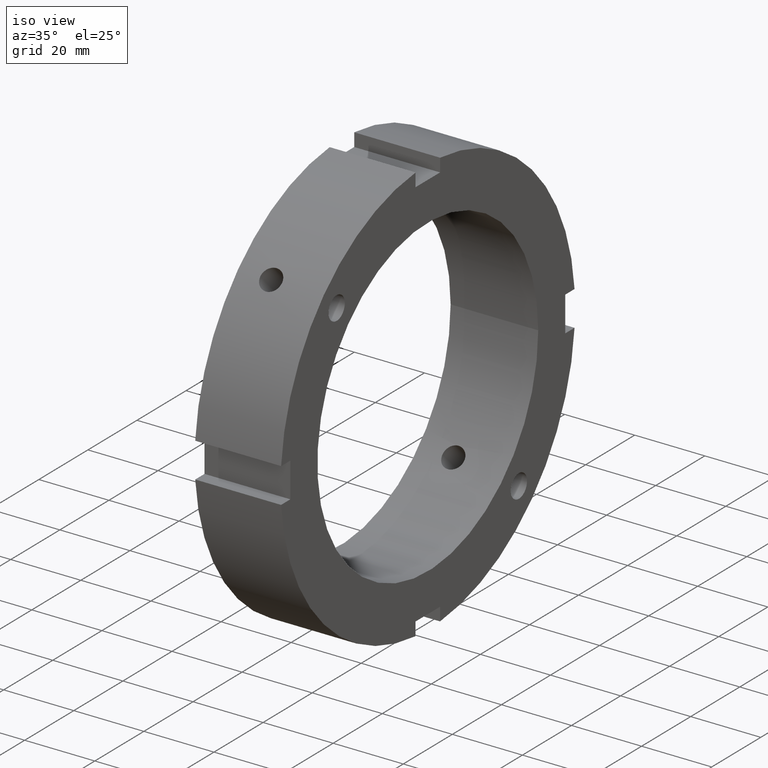
[diagram: clean part render]
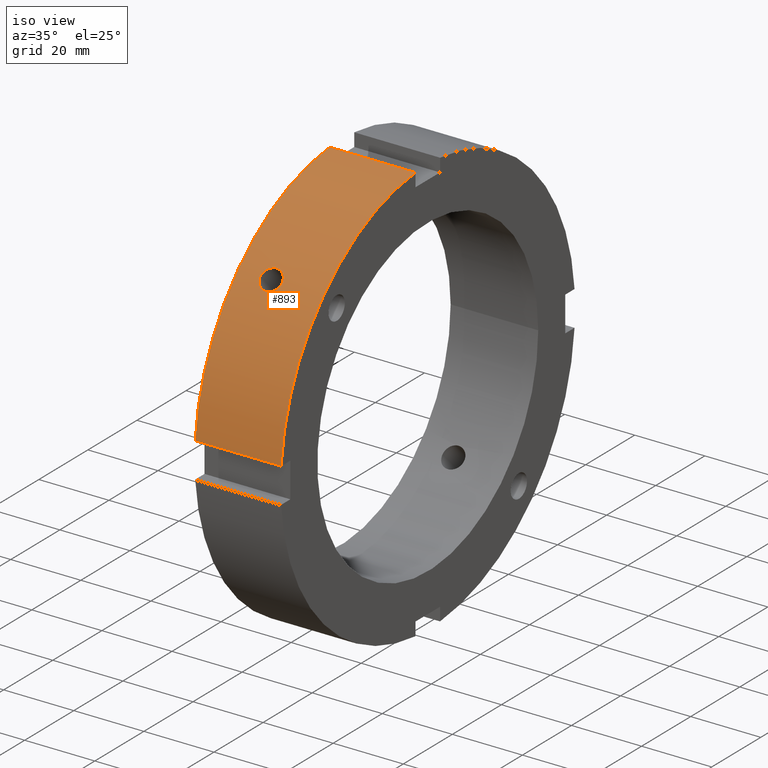
[diagram: same view with one face highlighted and labeled with its STEP entity id]
A machine part, iso view. The second image highlights one B-rep face of the part: STEP entity #893.
In plain terms, the highlighted cylindrical surface (partial cylindrical patch) has radius 60 mm, axis along (1, 0, 0).
Its self-contained STEP definition (entity closure, byte-faithful):
#209=CARTESIAN_POINT('',(9.999999999999986,-44.561772583316362,40.177710539959776));
#210=VERTEX_POINT('',#209);
#211=CARTESIAN_POINT('',(9.999999999999986,-44.561772583316348,40.17771053995979));
#212=CARTESIAN_POINT('',(9.610682685129081,-44.561772583316348,40.17771053995979));
#213=CARTESIAN_POINT('',(9.195462866064688,-44.509705000042104,40.235696132911222));
#214=CARTESIAN_POINT('',(8.431707439552355,-44.296676004376856,40.470107207976078));
#215=CARTESIAN_POINT('',(8.083165956447614,-44.135563328041471,40.646376029251741));
#216=CARTESIAN_POINT('',(7.532772066487651,-43.760604083340283,41.049791288379225));
#217=CARTESIAN_POINT('',(7.294207271991367,-43.52172167297504,41.303821013147875));
#218=CARTESIAN_POINT('',(6.977819320932714,-42.99234590730083,41.854558665123037));
#219=CARTESIAN_POINT('',(6.899999999999986,-42.701695718257362,42.151118024128351));
#220=CARTESIAN_POINT('',(6.899999999999986,-42.151118024128309,42.701695718257398));
#221=CARTESIAN_POINT('',(6.977819320932709,-41.854558665123001,42.992345907300859));
#222=CARTESIAN_POINT('',(7.294207271991361,-41.303821013147839,43.521721672975069));
#223=CARTESIAN_POINT('',(7.53277206648765,-41.049791288379176,43.760604083340311));
#224=CARTESIAN_POINT('',(8.083165956447612,-40.646376029251684,44.135563328041492));
#225=CARTESIAN_POINT('',(8.431707439552355,-40.470107207976028,44.296676004376884));
#226=CARTESIAN_POINT('',(9.195462866064688,-40.235696132911173,44.509705000042146));
#227=CARTESIAN_POINT('',(9.610682685129081,-40.177710539959733,44.561772583316383));
#228=CARTESIAN_POINT('',(10.38931731487089,-40.177710539959733,44.561772583316369));
#229=CARTESIAN_POINT('',(10.804537133935279,-40.235696132911173,44.509705000042146));
#230=CARTESIAN_POINT('',(11.568292560447615,-40.470107207976028,44.296676004376899));
#231=CARTESIAN_POINT('',(11.916834043552363,-40.646376029251684,44.135563328041485));
#232=CARTESIAN_POINT('',(12.467227933512326,-41.049791288379176,43.760604083340311));
#233=CARTESIAN_POINT('',(12.70579272800861,-41.303821013147839,43.521721672975069));
#234=CARTESIAN_POINT('',(13.022180679067263,-41.854558665123001,42.992345907300859));
#235=CARTESIAN_POINT('',(13.099999999999987,-42.151118024128309,42.701695718257398));
#236=CARTESIAN_POINT('',(13.099999999999987,-42.701695718257355,42.151118024128344));
#237=CARTESIAN_POINT('',(13.022180679067262,-42.99234590730083,41.854558665123037));
#238=CARTESIAN_POINT('',(12.705792728008605,-43.52172167297504,41.303821013147875));
#239=CARTESIAN_POINT('',(12.467227933512323,-43.760604083340283,41.049791288379218));
#240=CARTESIAN_POINT('',(11.916834043552358,-44.135563328041471,40.646376029251741));
#241=CARTESIAN_POINT('',(11.56829256044762,-44.296676004376856,40.470107207976078));
#242=CARTESIAN_POINT('',(10.804537133935288,-44.509705000042104,40.235696132911222));
#243=CARTESIAN_POINT('',(10.389317314870892,-44.561772583316348,40.17771053995979));
#244=CARTESIAN_POINT('',(9.999999999999986,-44.561772583316348,40.17771053995979));
#245=B_SPLINE_CURVE_WITH_KNOTS('',3,(#211,#212,#213,#214,#215,#216,#217,#218,#219,#220,#221,#222,#223,#224,#225,#226,#227,#228,#229,#230,#231,#232,#233,#234,#235,#236,#237,#238,#239,#240,#241,#242,#243,#244),.UNSPECIFIED.,.T.,.U.,(4,2,2,2,2,2,2,2,2,2,2,2,2,2,2,2,4),(0.0,0.116795194461271,0.233590388922543,0.350385555249154,0.467180721575766,0.583975887902377,0.700771054228988,0.81756624869026,0.934361443151531,1.051156637612803,1.167951832074075,1.284746998400686,1.401542164727297,1.518337331053908,1.63513249738052,1.751927691841791,1.868722886303063),.UNSPECIFIED.);
#246=EDGE_CURVE('',#210,#210,#245,.T.);
#637=CARTESIAN_POINT('',(0.499999999999985,-59.791303715506992,5.000000000000004));
#638=VERTEX_POINT('',#637);
#653=CARTESIAN_POINT('',(24.999999999999982,-59.791303715506992,5.000000000000004));
#654=VERTEX_POINT('',#653);
#661=CARTESIAN_POINT('',(0.499999999999986,-59.791303715506992,5.000000000000004));
#662=DIRECTION('',(1.0,0.0,0.0));
#663=VECTOR('',#662,24.499999999999996);
#664=LINE('',#661,#663);
#665=EDGE_CURVE('',#638,#654,#664,.T.);
#777=CARTESIAN_POINT('',(0.499999999999985,-4.999999999999992,59.791303715506992));
#778=VERTEX_POINT('',#777);
#787=CARTESIAN_POINT('',(24.999999999999982,-4.999999999999992,59.791303715506992));
#788=VERTEX_POINT('',#787);
#789=CARTESIAN_POINT('',(24.999999999999982,-4.999999999999992,59.791303715506992));
#790=DIRECTION('',(-1.0,0.0,0.0));
#791=VECTOR('',#790,24.499999999999996);
#792=LINE('',#789,#791);
#793=EDGE_CURVE('',#788,#778,#792,.T.);
#867=CARTESIAN_POINT('',(12.749999999999984,0.0,0.0));
#868=DIRECTION('',(1.0,0.0,0.0));
#869=DIRECTION('',(0.0,1.0,0.0));
#870=AXIS2_PLACEMENT_3D('',#867,#868,#869);
#871=CYLINDRICAL_SURFACE('',#870,60.0);
#872=ORIENTED_EDGE('',*,*,#665,.T.);
#873=CARTESIAN_POINT('',(24.999999999999982,0.0,0.0));
#874=DIRECTION('',(1.0,0.0,0.0));
#875=DIRECTION('',(0.0,1.0,0.0));
#876=AXIS2_PLACEMENT_3D('',#873,#874,#875);
#877=CIRCLE('',#876,60.0);
#878=EDGE_CURVE('',#788,#654,#877,.T.);
#879=ORIENTED_EDGE('',*,*,#878,.F.);
#880=ORIENTED_EDGE('',*,*,#793,.T.);
#881=CARTESIAN_POINT('',(0.499999999999985,0.0,0.0));
#882=DIRECTION('',(1.0,0.0,0.0));
#883=DIRECTION('',(0.0,1.0,0.0));
#884=AXIS2_PLACEMENT_3D('',#881,#882,#883);
#885=CIRCLE('',#884,60.0);
#886=EDGE_CURVE('',#778,#638,#885,.T.);
#887=ORIENTED_EDGE('',*,*,#886,.T.);
#888=EDGE_LOOP('',(#872,#879,#880,#887));
#889=FACE_OUTER_BOUND('',#888,.T.);
#890=ORIENTED_EDGE('',*,*,#246,.T.);
#891=EDGE_LOOP('',(#890));
#892=FACE_BOUND('',#891,.T.);
#893=ADVANCED_FACE('',(#889,#892),#871,.T.);